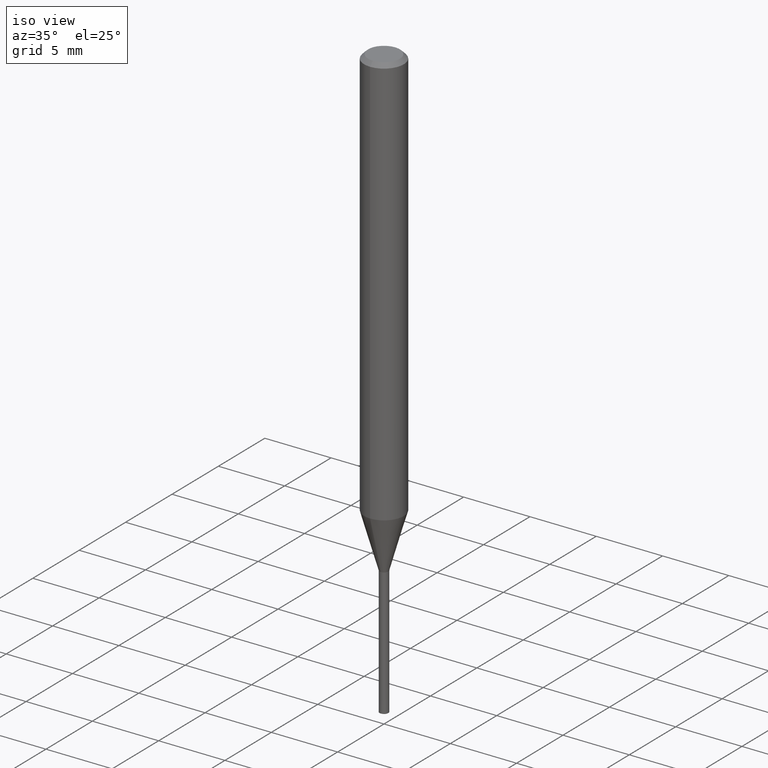
[diagram: clean part render]
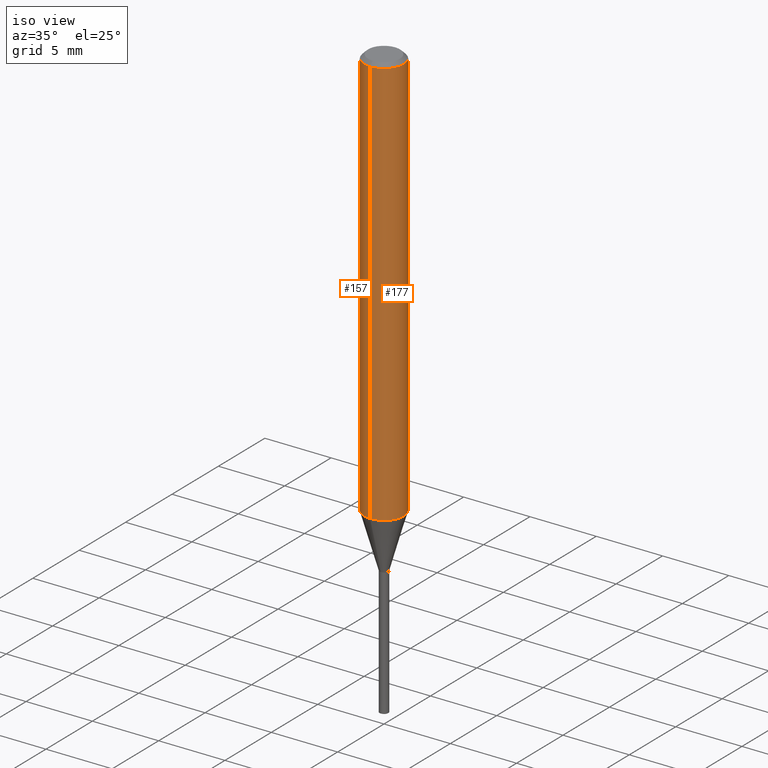
[diagram: same view with one multi-face feature highlighted, each face labeled with its STEP entity id]
A machine part, iso view. The highlighted faces form ONE feature: a constant-radius fillet chain: 2 tangent blend faces with common blend radius 1.5 mm. The faces share edges in the B-rep.
Their STEP definitions:
[1] entity #177 (Cylinder):
#107=EDGE_CURVE('',#183,#139,#243,.T.);
#139=VERTEX_POINT('',#278);
#143=EDGE_CURVE('',#167,#139,#282,.T.);
#147=EDGE_CURVE('',#201,#183,#286,.T.);
#159=EDGE_CURVE('',#167,#201,#300,.T.);
#167=VERTEX_POINT('',#309);
#177=ADVANCED_FACE('',(#320),#321,.T.);
#183=VERTEX_POINT('',#329);
#201=VERTEX_POINT('',#351);
#243=LINE('',#393,#394);
#278=CARTESIAN_POINT('',(1.83690953073357E-016,-1.5,-0.300000000000001));
#282=CIRCLE('',#443,1.5);
#286=CIRCLE('',#449,1.5);
#300=LINE('',#464,#465);
#309=CARTESIAN_POINT('',(0.0,1.5,-0.300000000000001));
#320=FACE_OUTER_BOUND('',#494,.T.);
#321=CYLINDRICAL_SURFACE('',#495,1.5);
#329=CARTESIAN_POINT('',(1.83690953073357E-016,-1.5,-31.102));
#351=CARTESIAN_POINT('',(0.0,1.5,-31.102));
#393=CARTESIAN_POINT('',(1.83690953073357E-016,-1.5,-15.701));
#394=VECTOR('',#554,1.0);
#443=AXIS2_PLACEMENT_3D('',#589,#590,#591);
#449=AXIS2_PLACEMENT_3D('',#595,#596,#597);
#464=CARTESIAN_POINT('',(-1.83690953073357E-016,1.5,-15.701));
#465=VECTOR('',#618,1.0);
#494=EDGE_LOOP('',(#641,#642,#643,#644));
#495=AXIS2_PLACEMENT_3D('',#645,#646,#647);
#554=DIRECTION('',(-0.0,-0.0,1.0));
#589=CARTESIAN_POINT('',(0.0,0.0,-0.300000000000001));
#590=DIRECTION('',(0.0,0.0,-1.0));
#591=DIRECTION('',(0.0,1.0,0.0));
#595=CARTESIAN_POINT('',(0.0,0.0,-31.102));
#596=DIRECTION('',(0.0,0.0,-1.0));
#597=DIRECTION('',(0.0,1.0,0.0));
#618=DIRECTION('',(0.0,0.0,-1.0));
#641=ORIENTED_EDGE('',*,*,#159,.F.);
#642=ORIENTED_EDGE('',*,*,#143,.T.);
#643=ORIENTED_EDGE('',*,*,#107,.F.);
#644=ORIENTED_EDGE('',*,*,#147,.F.);
#645=CARTESIAN_POINT('',(0.0,0.0,-15.701));
#646=DIRECTION('',(-0.0,-0.0,1.0));
#647=DIRECTION('',(0.0,1.0,0.0));
[2] entity #157 (Cylinder):
#93=EDGE_CURVE('',#183,#201,#228,.T.);
#107=EDGE_CURVE('',#183,#139,#243,.T.);
#139=VERTEX_POINT('',#278);
#157=ADVANCED_FACE('',(#297),#298,.T.);
#159=EDGE_CURVE('',#167,#201,#300,.T.);
#167=VERTEX_POINT('',#309);
#183=VERTEX_POINT('',#329);
#201=VERTEX_POINT('',#351);
#205=EDGE_CURVE('',#139,#167,#355,.T.);
#228=CIRCLE('',#372,1.5);
#243=LINE('',#393,#394);
#278=CARTESIAN_POINT('',(1.83690953073357E-016,-1.5,-0.300000000000001));
#297=FACE_OUTER_BOUND('',#460,.T.);
#298=CYLINDRICAL_SURFACE('',#461,1.5);
#300=LINE('',#464,#465);
#309=CARTESIAN_POINT('',(0.0,1.5,-0.300000000000001));
#329=CARTESIAN_POINT('',(1.83690953073357E-016,-1.5,-31.102));
#351=CARTESIAN_POINT('',(0.0,1.5,-31.102));
#355=CIRCLE('',#533,1.5);
#372=AXIS2_PLACEMENT_3D('',#538,#539,#540);
#393=CARTESIAN_POINT('',(1.83690953073357E-016,-1.5,-15.701));
#394=VECTOR('',#554,1.0);
#460=EDGE_LOOP('',(#611,#612,#613,#614));
#461=AXIS2_PLACEMENT_3D('',#615,#616,#617);
#464=CARTESIAN_POINT('',(-1.83690953073357E-016,1.5,-15.701));
#465=VECTOR('',#618,1.0);
#533=AXIS2_PLACEMENT_3D('',#700,#701,#702);
#538=CARTESIAN_POINT('',(0.0,0.0,-31.102));
#539=DIRECTION('',(0.0,0.0,-1.0));
#540=DIRECTION('',(0.0,1.0,0.0));
#554=DIRECTION('',(-0.0,-0.0,1.0));
#611=ORIENTED_EDGE('',*,*,#159,.T.);
#612=ORIENTED_EDGE('',*,*,#93,.F.);
#613=ORIENTED_EDGE('',*,*,#107,.T.);
#614=ORIENTED_EDGE('',*,*,#205,.T.);
#615=CARTESIAN_POINT('',(0.0,0.0,-15.701));
#616=DIRECTION('',(-0.0,-0.0,1.0));
#617=DIRECTION('',(0.0,1.0,0.0));
#618=DIRECTION('',(0.0,0.0,-1.0));
#700=CARTESIAN_POINT('',(0.0,0.0,-0.300000000000001));
#701=DIRECTION('',(0.0,0.0,-1.0));
#702=DIRECTION('',(0.0,1.0,0.0));